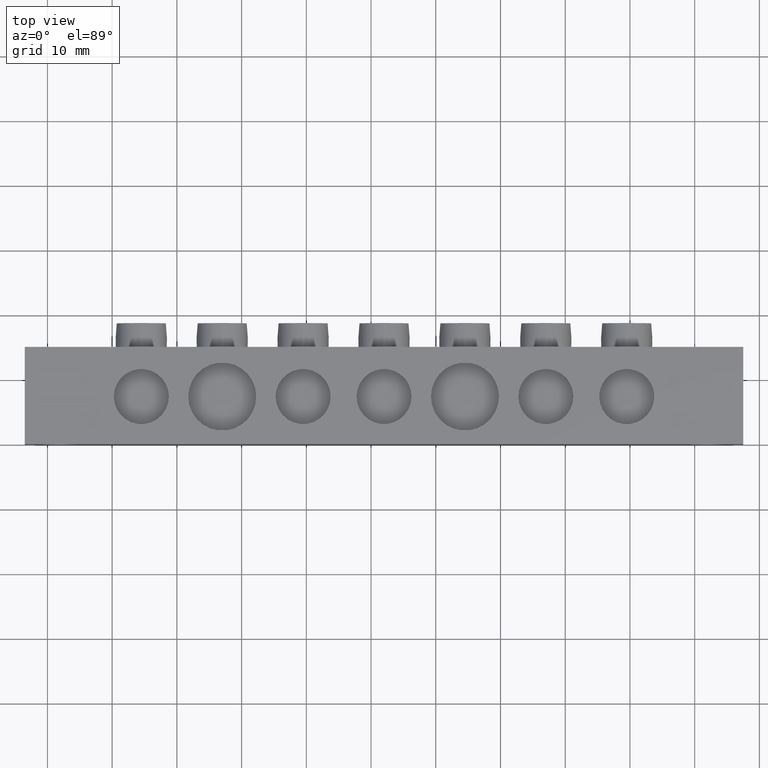
[diagram: clean part render]
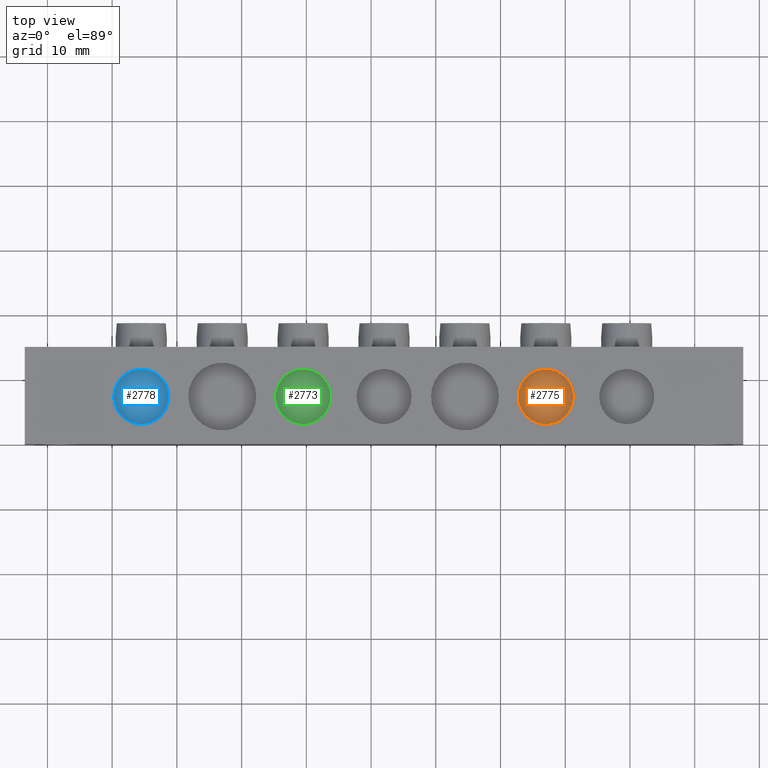
[diagram: same view with three faces highlighted in distinct colors, each labeled with its STEP entity id]
A machine part, top view with three faces highlighted in distinct colors.
Their STEP definitions:

[orange] entity #2775 — the highlighted planar face has unit normal (0, 0, -1).
#50 = ORIENTED_EDGE ( 'NONE', *, *, #2930, .T. ) ;
#54 = ORIENTED_EDGE ( 'NONE', *, *, #2748, .T. ) ;
#370 = EDGE_LOOP ( 'NONE', ( #54, #50 ) ) ;
#1092 = CIRCLE ( 'NONE', #1139, 4.250000000000003600 ) ;
#1139 = AXIS2_PLACEMENT_3D ( 'NONE', #1556, #1583, #1564 ) ;
#1191 = AXIS2_PLACEMENT_3D ( 'NONE', #1688, #1675, #1680 ) ;
#1204 = CIRCLE ( 'NONE', #1218, 4.250000000000003600 ) ;
#1218 = AXIS2_PLACEMENT_3D ( 'NONE', #3192, #3174, #3193 ) ;
#1556 = CARTESIAN_POINT ( 'NONE',  ( 87.00000000000002800, 7.300000000000008700, -0.5000000000000004400 ) ) ;
#1564 = DIRECTION ( 'NONE',  ( -1.000000000000000000, 0.0000000000000000000, 0.0000000000000000000 ) ) ;
#1583 = DIRECTION ( 'NONE',  ( -0.0000000000000000000, -0.0000000000000000000, 1.000000000000000000 ) ) ;
#1674 = PLANE ( 'NONE',  #1191 ) ;
#1675 = DIRECTION ( 'NONE',  ( 0.0000000000000000000, 0.0000000000000000000, -1.000000000000000000 ) ) ;
#1680 = DIRECTION ( 'NONE',  ( -1.000000000000000000, 0.0000000000000000000, -0.0000000000000000000 ) ) ;
#1688 = CARTESIAN_POINT ( 'NONE',  ( 105.8948358936521900, 0.5000000000000038900, -0.5000000000000000000 ) ) ;
#1707 = FACE_OUTER_BOUND ( 'NONE', #370, .T. ) ;
#2386 = CARTESIAN_POINT ( 'NONE',  ( 82.75000000000001400, 7.300000000000009600, -0.5000000000000004400 ) ) ;
#2401 = CARTESIAN_POINT ( 'NONE',  ( 91.25000000000002800, 7.300000000000008700, -0.5000000000000004400 ) ) ;
#2748 = EDGE_CURVE ( 'NONE', #3806, #3841, #1092, .T. ) ;
#2775 = ADVANCED_FACE ( 'NONE', ( #1707 ), #1674, .F. ) ;
#2930 = EDGE_CURVE ( 'NONE', #3841, #3806, #1204, .T. ) ;
#3174 = DIRECTION ( 'NONE',  ( -0.0000000000000000000, -0.0000000000000000000, 1.000000000000000000 ) ) ;
#3192 = CARTESIAN_POINT ( 'NONE',  ( 87.00000000000002800, 7.300000000000008700, -0.5000000000000004400 ) ) ;
#3193 = DIRECTION ( 'NONE',  ( -1.000000000000000000, 0.0000000000000000000, 0.0000000000000000000 ) ) ;
#3806 = VERTEX_POINT ( 'NONE', #2401 ) ;
#3841 = VERTEX_POINT ( 'NONE', #2386 ) ;

[blue] entity #2778 — the highlighted planar face has unit normal (0, 0, -1).
#52 = ORIENTED_EDGE ( 'NONE', *, *, #2744, .T. ) ;
#362 = EDGE_LOOP ( 'NONE', ( #52, #747 ) ) ;
#747 = ORIENTED_EDGE ( 'NONE', *, *, #2954, .T. ) ;
#1095 = AXIS2_PLACEMENT_3D ( 'NONE', #1561, #1560, #1589 ) ;
#1141 = CIRCLE ( 'NONE', #1095, 4.249999999999996400 ) ;
#1173 = AXIS2_PLACEMENT_3D ( 'NONE', #2091, #2092, #2151 ) ;
#1266 = AXIS2_PLACEMENT_3D ( 'NONE', #2301, #2321, #2319 ) ;
#1294 = CIRCLE ( 'NONE', #1266, 4.249999999999996400 ) ;
#1560 = DIRECTION ( 'NONE',  ( 0.0000000000000000000, 0.0000000000000000000, 1.000000000000000000 ) ) ;
#1561 = CARTESIAN_POINT ( 'NONE',  ( 24.50000000000000000, 7.299999999999998900, -0.5000000000000004400 ) ) ;
#1589 = DIRECTION ( 'NONE',  ( 1.000000000000000000, 0.0000000000000000000, 0.0000000000000000000 ) ) ;
#1887 = FACE_OUTER_BOUND ( 'NONE', #362, .T. ) ;
#2042 = PLANE ( 'NONE',  #1173 ) ;
#2091 = CARTESIAN_POINT ( 'NONE',  ( 105.8948358936521900, 0.5000000000000038900, -0.5000000000000000000 ) ) ;
#2092 = DIRECTION ( 'NONE',  ( 0.0000000000000000000, 0.0000000000000000000, -1.000000000000000000 ) ) ;
#2151 = DIRECTION ( 'NONE',  ( -1.000000000000000000, 0.0000000000000000000, -0.0000000000000000000 ) ) ;
#2301 = CARTESIAN_POINT ( 'NONE',  ( 24.50000000000000000, 7.299999999999998900, -0.5000000000000004400 ) ) ;
#2319 = DIRECTION ( 'NONE',  ( 1.000000000000000000, 0.0000000000000000000, 0.0000000000000000000 ) ) ;
#2321 = DIRECTION ( 'NONE',  ( 0.0000000000000000000, 0.0000000000000000000, 1.000000000000000000 ) ) ;
#2396 = CARTESIAN_POINT ( 'NONE',  ( 28.74999999999999600, 7.299999999999998900, -0.5000000000000004400 ) ) ;
#2402 = CARTESIAN_POINT ( 'NONE',  ( 20.25000000000000400, 7.299999999999999800, -0.5000000000000004400 ) ) ;
#2744 = EDGE_CURVE ( 'NONE', #3788, #3843, #1141, .T. ) ;
#2778 = ADVANCED_FACE ( 'NONE', ( #1887 ), #2042, .F. ) ;
#2954 = EDGE_CURVE ( 'NONE', #3843, #3788, #1294, .T. ) ;
#3788 = VERTEX_POINT ( 'NONE', #2396 ) ;
#3843 = VERTEX_POINT ( 'NONE', #2402 ) ;

[green] entity #2773 — the highlighted planar face has unit normal (0, 0, -1).
#96 = ORIENTED_EDGE ( 'NONE', *, *, #2935, .T. ) ;
#426 = EDGE_LOOP ( 'NONE', ( #738, #96 ) ) ;
#738 = ORIENTED_EDGE ( 'NONE', *, *, #2721, .T. ) ;
#1121 = CIRCLE ( 'NONE', #1134, 4.250000000000003600 ) ;
#1134 = AXIS2_PLACEMENT_3D ( 'NONE', #1465, #1497, #1493 ) ;
#1159 = AXIS2_PLACEMENT_3D ( 'NONE', #1700, #1677, #1679 ) ;
#1222 = CIRCLE ( 'NONE', #1274, 4.250000000000003600 ) ;
#1274 = AXIS2_PLACEMENT_3D ( 'NONE', #3188, #3178, #3158 ) ;
#1465 = CARTESIAN_POINT ( 'NONE',  ( 49.50000000000000000, 7.299999999999998900, -0.5000000000000004400 ) ) ;
#1493 = DIRECTION ( 'NONE',  ( 1.000000000000000000, 0.0000000000000000000, 0.0000000000000000000 ) ) ;
#1497 = DIRECTION ( 'NONE',  ( 0.0000000000000000000, 0.0000000000000000000, 1.000000000000000000 ) ) ;
#1673 = PLANE ( 'NONE',  #1159 ) ;
#1677 = DIRECTION ( 'NONE',  ( 0.0000000000000000000, 0.0000000000000000000, -1.000000000000000000 ) ) ;
#1679 = DIRECTION ( 'NONE',  ( -1.000000000000000000, 0.0000000000000000000, -0.0000000000000000000 ) ) ;
#1684 = FACE_OUTER_BOUND ( 'NONE', #426, .T. ) ;
#1700 = CARTESIAN_POINT ( 'NONE',  ( 105.8948358936521900, 0.5000000000000038900, -0.5000000000000000000 ) ) ;
#2359 = CARTESIAN_POINT ( 'NONE',  ( 53.75000000000000700, 7.299999999999998900, -0.5000000000000004400 ) ) ;
#2406 = CARTESIAN_POINT ( 'NONE',  ( 45.25000000000000000, 7.299999999999999800, -0.5000000000000004400 ) ) ;
#2721 = EDGE_CURVE ( 'NONE', #3808, #3834, #1121, .T. ) ;
#2773 = ADVANCED_FACE ( 'NONE', ( #1684 ), #1673, .F. ) ;
#2935 = EDGE_CURVE ( 'NONE', #3834, #3808, #1222, .T. ) ;
#3158 = DIRECTION ( 'NONE',  ( 1.000000000000000000, 0.0000000000000000000, 0.0000000000000000000 ) ) ;
#3178 = DIRECTION ( 'NONE',  ( 0.0000000000000000000, 0.0000000000000000000, 1.000000000000000000 ) ) ;
#3188 = CARTESIAN_POINT ( 'NONE',  ( 49.50000000000000000, 7.299999999999998900, -0.5000000000000004400 ) ) ;
#3808 = VERTEX_POINT ( 'NONE', #2359 ) ;
#3834 = VERTEX_POINT ( 'NONE', #2406 ) ;